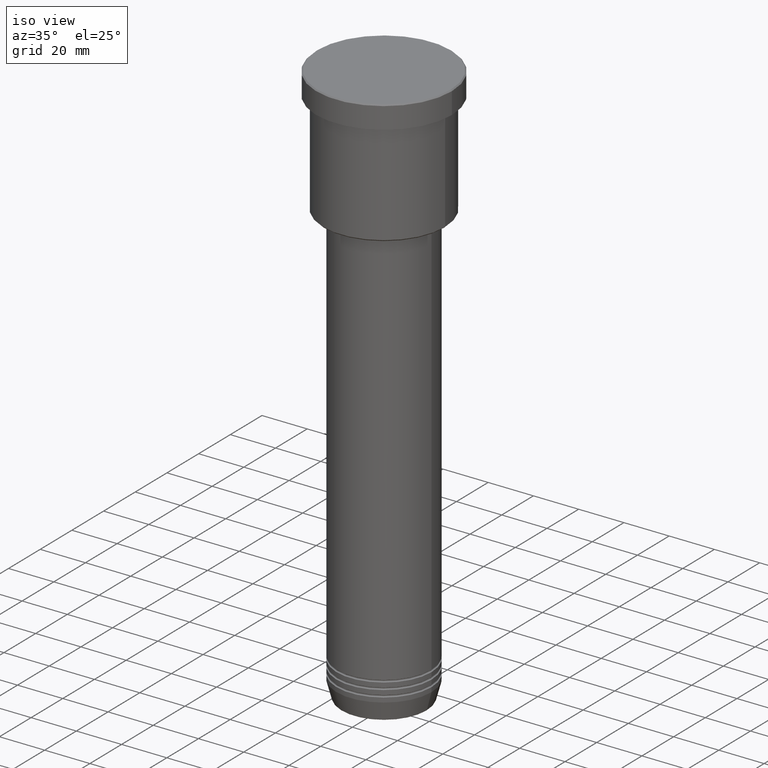
[diagram: clean part render]
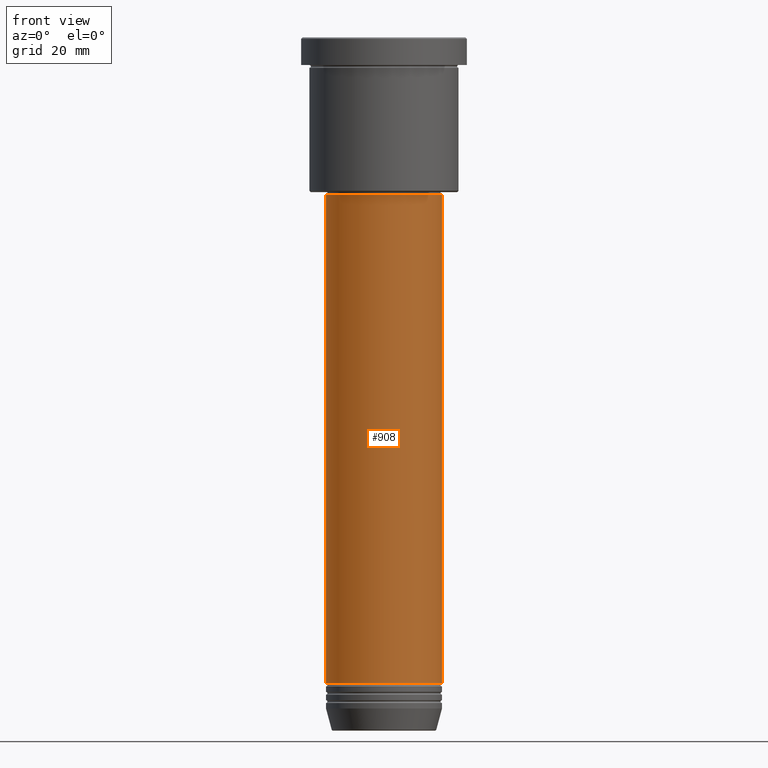
[diagram: tour spotlight — one face highlighted and labeled with its STEP entity id]
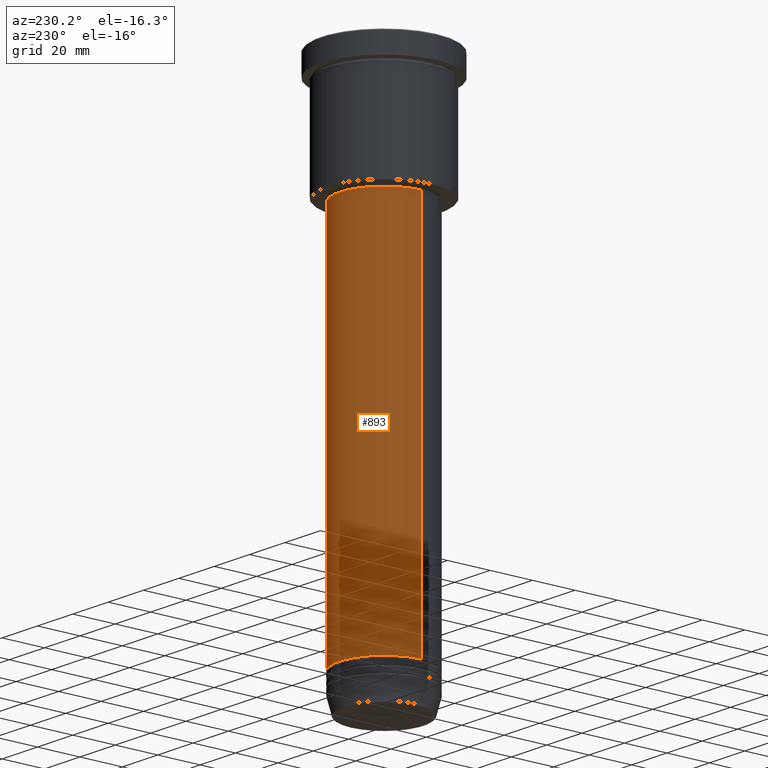
[diagram: tour spotlight — one face highlighted and labeled with its STEP entity id]
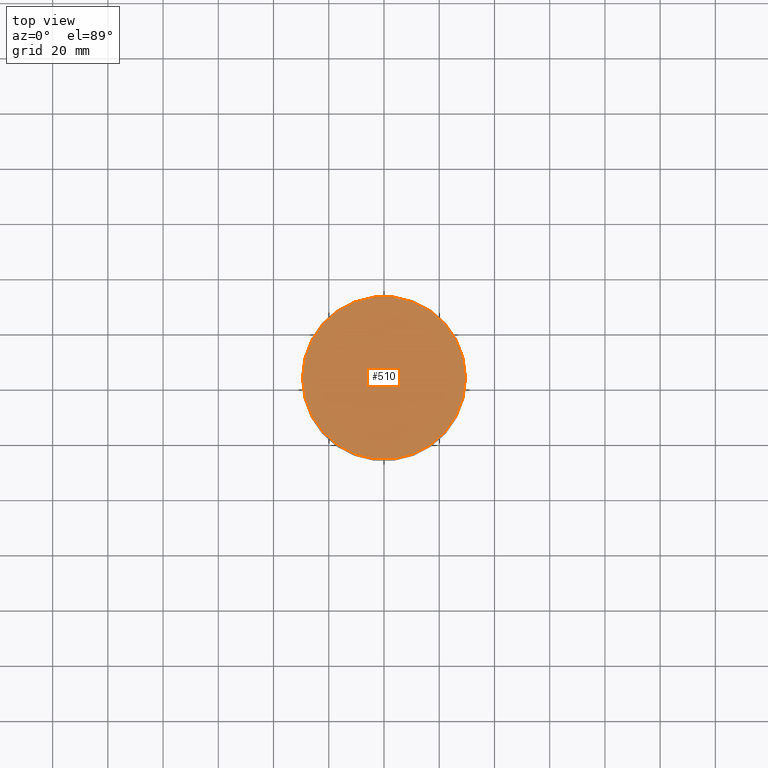
[diagram: tour spotlight — one face highlighted and labeled with its STEP entity id]
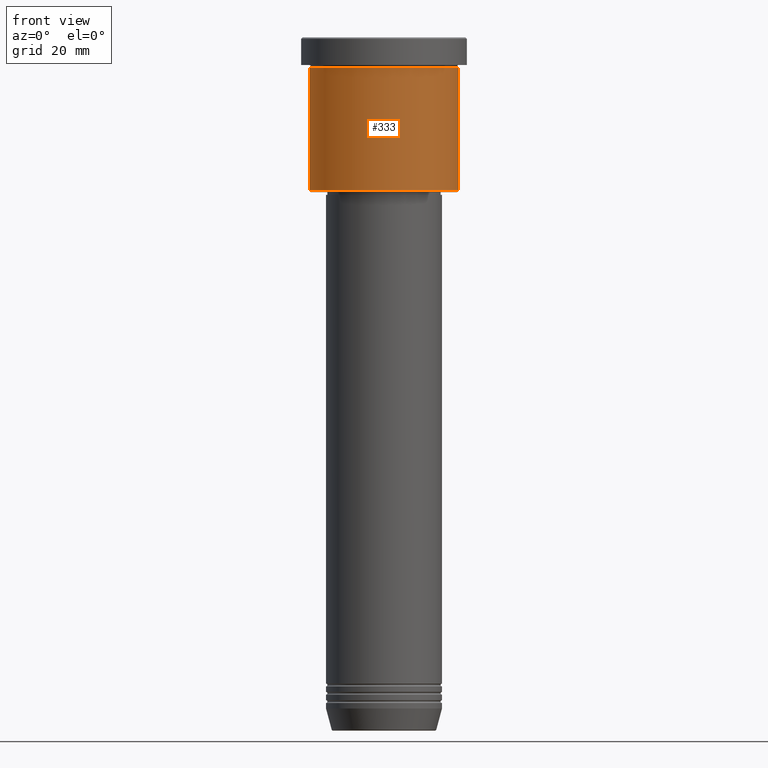
[diagram: tour spotlight — one face highlighted and labeled with its STEP entity id]
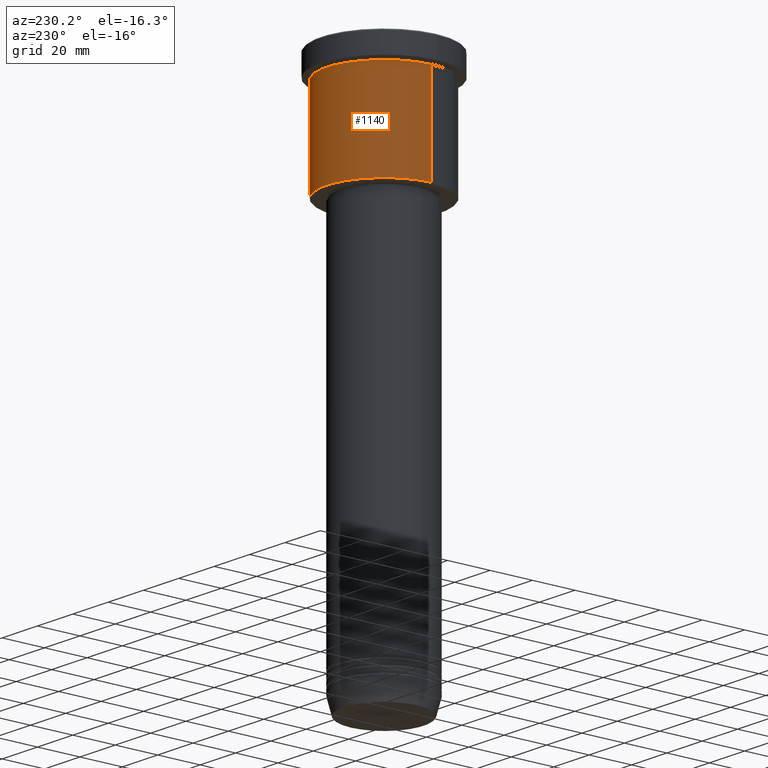
[diagram: tour spotlight — one face highlighted and labeled with its STEP entity id]
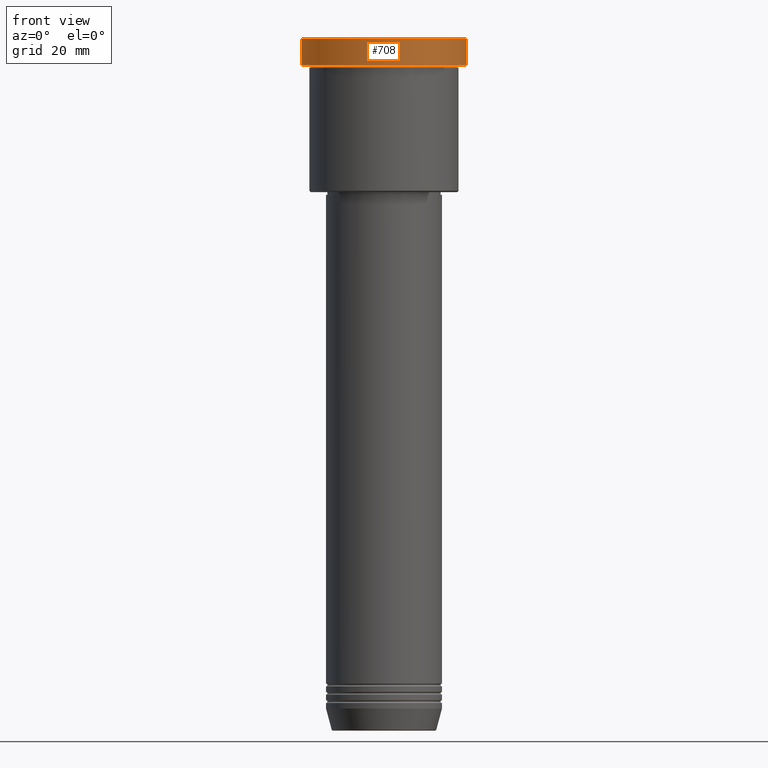
[diagram: tour spotlight — one face highlighted and labeled with its STEP entity id]
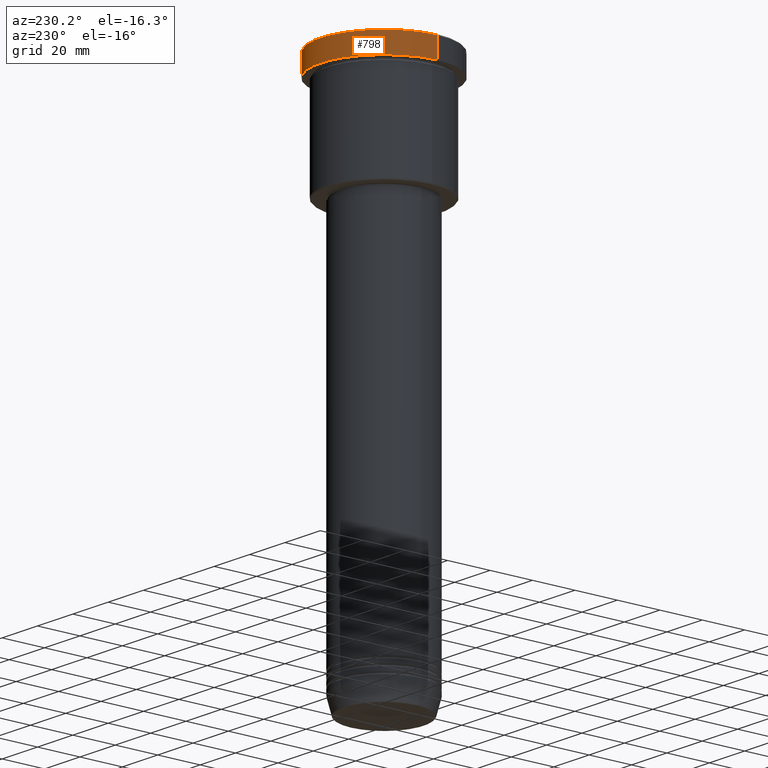
[diagram: tour spotlight — one face highlighted and labeled with its STEP entity id]
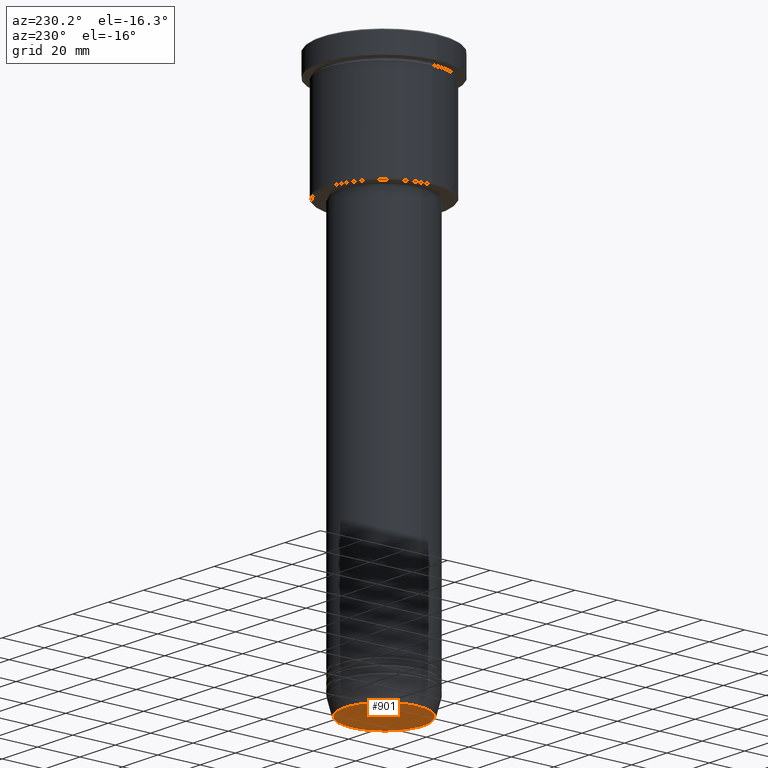
[diagram: tour spotlight — one face highlighted and labeled with its STEP entity id]
A machine part: a face-by-face anatomy tour. The part has 43 B-rep faces; the first image is the clean iso view, then the 8 largest visible faces are spotlighted one at a time (largest first), each with its STEP entity span.

Face 1 — front view, entity #908. In plain terms, the highlighted cylindrical surface (partial cylindrical patch) has radius 21 mm, axis along (-0, -0, 1).
Definition (entity closure, byte-faithful):
#22 = VECTOR ( 'NONE', #253, 1000.000000000000000 ) ;
#43 = EDGE_CURVE ( 'NONE', #993, #710, #267, .T. ) ;
#56 = DIRECTION ( 'NONE',  ( -0.000000000000000000, -0.000000000000000000, 1.000000000000000000 ) ) ;
#132 = DIRECTION ( 'NONE',  ( 1.000000000000000000, 0.000000000000000000, 0.000000000000000000 ) ) ;
#164 = CARTESIAN_POINT ( 'NONE',  ( -21.00000000000000000, 2.571758278209441661E-15, 0.000000000000000000 ) ) ;
#190 = DIRECTION ( 'NONE',  ( -0.000000000000000000, -0.000000000000000000, 1.000000000000000000 ) ) ;
#211 = VECTOR ( 'NONE', #190, 1000.000000000000000 ) ;
#213 = DIRECTION ( 'NONE',  ( -0.000000000000000000, -0.000000000000000000, 1.000000000000000000 ) ) ;
#232 = AXIS2_PLACEMENT_3D ( 'NONE', #590, #213, #132 ) ;
#253 = DIRECTION ( 'NONE',  ( -0.000000000000000000, -0.000000000000000000, 1.000000000000000000 ) ) ;
#254 = VERTEX_POINT ( 'NONE', #276 ) ;
#267 = LINE ( 'NONE', #1090, #211 ) ;
#276 = CARTESIAN_POINT ( 'NONE',  ( -21.00000000000000000, 2.571758278209441661E-15, -57.00000000000000000 ) ) ;
#306 = EDGE_CURVE ( 'NONE', #916, #254, #518, .T. ) ;
#322 = CARTESIAN_POINT ( 'NONE',  ( 21.00000000000000000, 0.000000000000000000, -234.0000000000000000 ) ) ;
#386 = EDGE_CURVE ( 'NONE', #916, #993, #1183, .T. ) ;
#430 = CARTESIAN_POINT ( 'NONE',  ( 0.000000000000000000, 0.000000000000000000, -57.00000000000000000 ) ) ;
#514 = ORIENTED_EDGE ( 'NONE', *, *, #582, .F. ) ;
#518 = LINE ( 'NONE', #164, #22 ) ;
#550 = ORIENTED_EDGE ( 'NONE', *, *, #386, .T. ) ;
#580 = CYLINDRICAL_SURFACE ( 'NONE', #232, 21.00000000000000000 ) ;
#582 = EDGE_CURVE ( 'NONE', #254, #710, #598, .T. ) ;
#590 = CARTESIAN_POINT ( 'NONE',  ( 0.000000000000000000, 0.000000000000000000, 0.000000000000000000 ) ) ;
#598 = CIRCLE ( 'NONE', #1127, 21.00000000000000000 ) ;
#601 = ORIENTED_EDGE ( 'NONE', *, *, #43, .T. ) ;
#680 = AXIS2_PLACEMENT_3D ( 'NONE', #1159, #891, #977 ) ;
#710 = VERTEX_POINT ( 'NONE', #814 ) ;
#757 = CARTESIAN_POINT ( 'NONE',  ( -21.00000000000000000, 2.571758278209441661E-15, -234.0000000000000000 ) ) ;
#801 = DIRECTION ( 'NONE',  ( 1.000000000000000000, 0.000000000000000000, 0.000000000000000000 ) ) ;
#814 = CARTESIAN_POINT ( 'NONE',  ( 21.00000000000000000, 0.000000000000000000, -57.00000000000000000 ) ) ;
#826 = EDGE_LOOP ( 'NONE', ( #934, #550, #601, #514 ) ) ;
#891 = DIRECTION ( 'NONE',  ( -0.000000000000000000, -0.000000000000000000, 1.000000000000000000 ) ) ;
#908 = ADVANCED_FACE ( 'NONE', ( #1016 ), #580, .T. ) ;
#916 = VERTEX_POINT ( 'NONE', #757 ) ;
#934 = ORIENTED_EDGE ( 'NONE', *, *, #306, .F. ) ;
#977 = DIRECTION ( 'NONE',  ( 1.000000000000000000, 0.000000000000000000, 0.000000000000000000 ) ) ;
#993 = VERTEX_POINT ( 'NONE', #322 ) ;
#1016 = FACE_OUTER_BOUND ( 'NONE', #826, .T. ) ;
#1090 = CARTESIAN_POINT ( 'NONE',  ( 21.00000000000000000, 0.000000000000000000, 0.000000000000000000 ) ) ;
#1127 = AXIS2_PLACEMENT_3D ( 'NONE', #430, #56, #801 ) ;
#1159 = CARTESIAN_POINT ( 'NONE',  ( 0.000000000000000000, 0.000000000000000000, -234.0000000000000000 ) ) ;
#1183 = CIRCLE ( 'NONE', #680, 21.00000000000000000 ) ;

Face 2 — auxiliary view, entity #893. In plain terms, the highlighted cylindrical surface (partial cylindrical patch) has radius 21 mm, axis along (-0, -0, 1).
Definition (entity closure, byte-faithful):
#16 = DIRECTION ( 'NONE',  ( 1.000000000000000000, 0.000000000000000000, 0.000000000000000000 ) ) ;
#22 = VECTOR ( 'NONE', #253, 1000.000000000000000 ) ;
#23 = CARTESIAN_POINT ( 'NONE',  ( 0.000000000000000000, 0.000000000000000000, 0.000000000000000000 ) ) ;
#32 = CYLINDRICAL_SURFACE ( 'NONE', #918, 21.00000000000000000 ) ;
#43 = EDGE_CURVE ( 'NONE', #993, #710, #267, .T. ) ;
#70 = ORIENTED_EDGE ( 'NONE', *, *, #306, .T. ) ;
#77 = CIRCLE ( 'NONE', #263, 21.00000000000000000 ) ;
#82 = DIRECTION ( 'NONE',  ( -0.000000000000000000, -0.000000000000000000, 1.000000000000000000 ) ) ;
#164 = CARTESIAN_POINT ( 'NONE',  ( -21.00000000000000000, 2.571758278209441661E-15, 0.000000000000000000 ) ) ;
#166 = CARTESIAN_POINT ( 'NONE',  ( 0.000000000000000000, 0.000000000000000000, -234.0000000000000000 ) ) ;
#190 = DIRECTION ( 'NONE',  ( -0.000000000000000000, -0.000000000000000000, 1.000000000000000000 ) ) ;
#202 = EDGE_LOOP ( 'NONE', ( #382, #70, #234, #919 ) ) ;
#211 = VECTOR ( 'NONE', #190, 1000.000000000000000 ) ;
#234 = ORIENTED_EDGE ( 'NONE', *, *, #942, .F. ) ;
#253 = DIRECTION ( 'NONE',  ( -0.000000000000000000, -0.000000000000000000, 1.000000000000000000 ) ) ;
#254 = VERTEX_POINT ( 'NONE', #276 ) ;
#263 = AXIS2_PLACEMENT_3D ( 'NONE', #166, #82, #442 ) ;
#267 = LINE ( 'NONE', #1090, #211 ) ;
#276 = CARTESIAN_POINT ( 'NONE',  ( -21.00000000000000000, 2.571758278209441661E-15, -57.00000000000000000 ) ) ;
#306 = EDGE_CURVE ( 'NONE', #916, #254, #518, .T. ) ;
#311 = DIRECTION ( 'NONE',  ( 1.000000000000000000, 0.000000000000000000, 0.000000000000000000 ) ) ;
#322 = CARTESIAN_POINT ( 'NONE',  ( 21.00000000000000000, 0.000000000000000000, -234.0000000000000000 ) ) ;
#331 = EDGE_CURVE ( 'NONE', #993, #916, #77, .T. ) ;
#382 = ORIENTED_EDGE ( 'NONE', *, *, #331, .T. ) ;
#442 = DIRECTION ( 'NONE',  ( 1.000000000000000000, 0.000000000000000000, 0.000000000000000000 ) ) ;
#477 = FACE_OUTER_BOUND ( 'NONE', #202, .T. ) ;
#518 = LINE ( 'NONE', #164, #22 ) ;
#568 = AXIS2_PLACEMENT_3D ( 'NONE', #1029, #943, #311 ) ;
#710 = VERTEX_POINT ( 'NONE', #814 ) ;
#757 = CARTESIAN_POINT ( 'NONE',  ( -21.00000000000000000, 2.571758278209441661E-15, -234.0000000000000000 ) ) ;
#814 = CARTESIAN_POINT ( 'NONE',  ( 21.00000000000000000, 0.000000000000000000, -57.00000000000000000 ) ) ;
#838 = DIRECTION ( 'NONE',  ( -0.000000000000000000, -0.000000000000000000, 1.000000000000000000 ) ) ;
#893 = ADVANCED_FACE ( 'NONE', ( #477 ), #32, .T. ) ;
#916 = VERTEX_POINT ( 'NONE', #757 ) ;
#918 = AXIS2_PLACEMENT_3D ( 'NONE', #23, #838, #16 ) ;
#919 = ORIENTED_EDGE ( 'NONE', *, *, #43, .F. ) ;
#942 = EDGE_CURVE ( 'NONE', #710, #254, #990, .T. ) ;
#943 = DIRECTION ( 'NONE',  ( -0.000000000000000000, -0.000000000000000000, 1.000000000000000000 ) ) ;
#990 = CIRCLE ( 'NONE', #568, 21.00000000000000000 ) ;
#993 = VERTEX_POINT ( 'NONE', #322 ) ;
#1029 = CARTESIAN_POINT ( 'NONE',  ( 0.000000000000000000, 0.000000000000000000, -57.00000000000000000 ) ) ;
#1090 = CARTESIAN_POINT ( 'NONE',  ( 21.00000000000000000, 0.000000000000000000, 0.000000000000000000 ) ) ;

Face 3 — top view, entity #510. In plain terms, the highlighted planar face has unit normal (0, -0, 1).
Definition (entity closure, byte-faithful):
#31 = EDGE_CURVE ( 'NONE', #327, #414, #728, .T. ) ;
#88 = CARTESIAN_POINT ( 'NONE',  ( 0.000000000000000000, 0.000000000000000000, 0.000000000000000000 ) ) ;
#214 = DIRECTION ( 'NONE',  ( 0.000000000000000000, -0.000000000000000000, 1.000000000000000000 ) ) ;
#231 = AXIS2_PLACEMENT_3D ( 'NONE', #941, #214, #478 ) ;
#245 = CARTESIAN_POINT ( 'NONE',  ( 0.000000000000000000, 0.000000000000000000, 0.000000000000000000 ) ) ;
#265 = EDGE_LOOP ( 'NONE', ( #959, #427 ) ) ;
#327 = VERTEX_POINT ( 'NONE', #1174 ) ;
#414 = VERTEX_POINT ( 'NONE', #676 ) ;
#415 = AXIS2_PLACEMENT_3D ( 'NONE', #88, #461, #437 ) ;
#427 = ORIENTED_EDGE ( 'NONE', *, *, #995, .T. ) ;
#437 = DIRECTION ( 'NONE',  ( 1.000000000000000000, 0.000000000000000000, 0.000000000000000000 ) ) ;
#461 = DIRECTION ( 'NONE',  ( -0.000000000000000000, -0.000000000000000000, 1.000000000000000000 ) ) ;
#478 = DIRECTION ( 'NONE',  ( 1.000000000000000000, 0.000000000000000000, 0.000000000000000000 ) ) ;
#510 = ADVANCED_FACE ( 'NONE', ( #839 ), #850, .T. ) ;
#616 = DIRECTION ( 'NONE',  ( 1.000000000000000000, 0.000000000000000000, 0.000000000000000000 ) ) ;
#620 = CIRCLE ( 'NONE', #1007, 29.50000000000000000 ) ;
#676 = CARTESIAN_POINT ( 'NONE',  ( 29.50000000000000000, 3.643324227463375391E-15, 0.000000000000000000 ) ) ;
#728 = CIRCLE ( 'NONE', #415, 29.50000000000000000 ) ;
#839 = FACE_OUTER_BOUND ( 'NONE', #265, .T. ) ;
#850 = PLANE ( 'NONE',  #231 ) ;
#941 = CARTESIAN_POINT ( 'NONE',  ( 0.000000000000000000, 0.000000000000000000, 0.000000000000000000 ) ) ;
#959 = ORIENTED_EDGE ( 'NONE', *, *, #31, .T. ) ;
#995 = EDGE_CURVE ( 'NONE', #414, #327, #620, .T. ) ;
#1007 = AXIS2_PLACEMENT_3D ( 'NONE', #245, #1053, #616 ) ;
#1053 = DIRECTION ( 'NONE',  ( -0.000000000000000000, -0.000000000000000000, 1.000000000000000000 ) ) ;
#1174 = CARTESIAN_POINT ( 'NONE',  ( -29.50000000000000000, 0.000000000000000000, 0.000000000000000000 ) ) ;

Face 4 — front view, entity #333. In plain terms, the highlighted cylindrical surface (partial cylindrical patch) has radius 27 mm, axis along (-0, -0, 1).
Definition (entity closure, byte-faithful):
#19 = EDGE_CURVE ( 'NONE', #611, #773, #219, .T. ) ;
#74 = CARTESIAN_POINT ( 'NONE',  ( 27.00000000000000355, 0.000000000000000000, -10.99999999999999289 ) ) ;
#97 = VECTOR ( 'NONE', #933, 1000.000000000000000 ) ;
#180 = CARTESIAN_POINT ( 'NONE',  ( -27.00000000000000355, 3.306546357697854128E-15, -10.99999999999999289 ) ) ;
#219 = LINE ( 'NONE', #946, #97 ) ;
#228 = DIRECTION ( 'NONE',  ( -0.000000000000000000, -0.000000000000000000, 1.000000000000000000 ) ) ;
#269 = FACE_OUTER_BOUND ( 'NONE', #928, .T. ) ;
#317 = DIRECTION ( 'NONE',  ( -0.000000000000000000, -0.000000000000000000, 1.000000000000000000 ) ) ;
#333 = ADVANCED_FACE ( 'NONE', ( #269 ), #588, .T. ) ;
#339 = VERTEX_POINT ( 'NONE', #608 ) ;
#355 = LINE ( 'NONE', #770, #1065 ) ;
#366 = EDGE_CURVE ( 'NONE', #339, #552, #355, .T. ) ;
#418 = CARTESIAN_POINT ( 'NONE',  ( 0.000000000000000000, 0.000000000000000000, -10.99999999999999289 ) ) ;
#426 = CARTESIAN_POINT ( 'NONE',  ( -27.00000000000000355, 3.306546357697854128E-15, -55.50000000000003553 ) ) ;
#552 = VERTEX_POINT ( 'NONE', #74 ) ;
#567 = AXIS2_PLACEMENT_3D ( 'NONE', #1039, #228, #597 ) ;
#588 = CYLINDRICAL_SURFACE ( 'NONE', #1121, 27.00000000000000355 ) ;
#589 = EDGE_CURVE ( 'NONE', #773, #552, #789, .T. ) ;
#597 = DIRECTION ( 'NONE',  ( -1.000000000000000000, 0.000000000000000000, 0.000000000000000000 ) ) ;
#608 = CARTESIAN_POINT ( 'NONE',  ( 27.00000000000000355, 0.000000000000000000, -55.50000000000003553 ) ) ;
#611 = VERTEX_POINT ( 'NONE', #426 ) ;
#649 = CIRCLE ( 'NONE', #567, 27.00000000000000355 ) ;
#683 = AXIS2_PLACEMENT_3D ( 'NONE', #418, #317, #790 ) ;
#690 = EDGE_CURVE ( 'NONE', #611, #339, #649, .T. ) ;
#765 = ORIENTED_EDGE ( 'NONE', *, *, #19, .F. ) ;
#770 = CARTESIAN_POINT ( 'NONE',  ( 27.00000000000000355, 0.000000000000000000, 0.000000000000000000 ) ) ;
#773 = VERTEX_POINT ( 'NONE', #180 ) ;
#789 = CIRCLE ( 'NONE', #683, 27.00000000000000355 ) ;
#790 = DIRECTION ( 'NONE',  ( 1.000000000000000000, 0.000000000000000000, 0.000000000000000000 ) ) ;
#792 = ORIENTED_EDGE ( 'NONE', *, *, #366, .T. ) ;
#922 = DIRECTION ( 'NONE',  ( -0.000000000000000000, -0.000000000000000000, 1.000000000000000000 ) ) ;
#928 = EDGE_LOOP ( 'NONE', ( #765, #1163, #792, #968 ) ) ;
#933 = DIRECTION ( 'NONE',  ( -0.000000000000000000, -0.000000000000000000, 1.000000000000000000 ) ) ;
#946 = CARTESIAN_POINT ( 'NONE',  ( -27.00000000000000355, 3.306546357697854128E-15, 0.000000000000000000 ) ) ;
#968 = ORIENTED_EDGE ( 'NONE', *, *, #589, .F. ) ;
#1039 = CARTESIAN_POINT ( 'NONE',  ( 0.000000000000000000, 0.000000000000000000, -55.50000000000003553 ) ) ;
#1050 = DIRECTION ( 'NONE',  ( 1.000000000000000000, 0.000000000000000000, 0.000000000000000000 ) ) ;
#1065 = VECTOR ( 'NONE', #1132, 1000.000000000000000 ) ;
#1121 = AXIS2_PLACEMENT_3D ( 'NONE', #1126, #922, #1050 ) ;
#1126 = CARTESIAN_POINT ( 'NONE',  ( 0.000000000000000000, 0.000000000000000000, 0.000000000000000000 ) ) ;
#1132 = DIRECTION ( 'NONE',  ( -0.000000000000000000, -0.000000000000000000, 1.000000000000000000 ) ) ;
#1163 = ORIENTED_EDGE ( 'NONE', *, *, #690, .T. ) ;

Face 5 — auxiliary view, entity #1140. In plain terms, the highlighted cylindrical surface (partial cylindrical patch) has radius 27 mm, axis along (-0, -0, 1).
Definition (entity closure, byte-faithful):
#19 = EDGE_CURVE ( 'NONE', #611, #773, #219, .T. ) ;
#74 = CARTESIAN_POINT ( 'NONE',  ( 27.00000000000000355, 0.000000000000000000, -10.99999999999999289 ) ) ;
#97 = VECTOR ( 'NONE', #933, 1000.000000000000000 ) ;
#159 = DIRECTION ( 'NONE',  ( -0.000000000000000000, -0.000000000000000000, 1.000000000000000000 ) ) ;
#180 = CARTESIAN_POINT ( 'NONE',  ( -27.00000000000000355, 3.306546357697854128E-15, -10.99999999999999289 ) ) ;
#219 = LINE ( 'NONE', #946, #97 ) ;
#249 = AXIS2_PLACEMENT_3D ( 'NONE', #712, #159, #701 ) ;
#270 = FACE_OUTER_BOUND ( 'NONE', #448, .T. ) ;
#275 = AXIS2_PLACEMENT_3D ( 'NONE', #733, #981, #546 ) ;
#301 = CARTESIAN_POINT ( 'NONE',  ( 0.000000000000000000, 0.000000000000000000, -10.99999999999999289 ) ) ;
#339 = VERTEX_POINT ( 'NONE', #608 ) ;
#353 = EDGE_CURVE ( 'NONE', #552, #773, #875, .T. ) ;
#355 = LINE ( 'NONE', #770, #1065 ) ;
#366 = EDGE_CURVE ( 'NONE', #339, #552, #355, .T. ) ;
#388 = CIRCLE ( 'NONE', #249, 27.00000000000000355 ) ;
#426 = CARTESIAN_POINT ( 'NONE',  ( -27.00000000000000355, 3.306546357697854128E-15, -55.50000000000003553 ) ) ;
#448 = EDGE_LOOP ( 'NONE', ( #799, #1106, #515, #1149 ) ) ;
#515 = ORIENTED_EDGE ( 'NONE', *, *, #353, .F. ) ;
#540 = AXIS2_PLACEMENT_3D ( 'NONE', #301, #894, #964 ) ;
#546 = DIRECTION ( 'NONE',  ( 1.000000000000000000, 0.000000000000000000, 0.000000000000000000 ) ) ;
#552 = VERTEX_POINT ( 'NONE', #74 ) ;
#608 = CARTESIAN_POINT ( 'NONE',  ( 27.00000000000000355, 0.000000000000000000, -55.50000000000003553 ) ) ;
#611 = VERTEX_POINT ( 'NONE', #426 ) ;
#639 = EDGE_CURVE ( 'NONE', #339, #611, #388, .T. ) ;
#701 = DIRECTION ( 'NONE',  ( -1.000000000000000000, 0.000000000000000000, 0.000000000000000000 ) ) ;
#712 = CARTESIAN_POINT ( 'NONE',  ( 0.000000000000000000, 0.000000000000000000, -55.50000000000003553 ) ) ;
#733 = CARTESIAN_POINT ( 'NONE',  ( 0.000000000000000000, 0.000000000000000000, 0.000000000000000000 ) ) ;
#770 = CARTESIAN_POINT ( 'NONE',  ( 27.00000000000000355, 0.000000000000000000, 0.000000000000000000 ) ) ;
#773 = VERTEX_POINT ( 'NONE', #180 ) ;
#799 = ORIENTED_EDGE ( 'NONE', *, *, #639, .T. ) ;
#875 = CIRCLE ( 'NONE', #540, 27.00000000000000355 ) ;
#894 = DIRECTION ( 'NONE',  ( -0.000000000000000000, -0.000000000000000000, 1.000000000000000000 ) ) ;
#933 = DIRECTION ( 'NONE',  ( -0.000000000000000000, -0.000000000000000000, 1.000000000000000000 ) ) ;
#946 = CARTESIAN_POINT ( 'NONE',  ( -27.00000000000000355, 3.306546357697854128E-15, 0.000000000000000000 ) ) ;
#964 = DIRECTION ( 'NONE',  ( 1.000000000000000000, 0.000000000000000000, 0.000000000000000000 ) ) ;
#981 = DIRECTION ( 'NONE',  ( -0.000000000000000000, -0.000000000000000000, 1.000000000000000000 ) ) ;
#991 = CYLINDRICAL_SURFACE ( 'NONE', #275, 27.00000000000000355 ) ;
#1065 = VECTOR ( 'NONE', #1132, 1000.000000000000000 ) ;
#1106 = ORIENTED_EDGE ( 'NONE', *, *, #19, .T. ) ;
#1132 = DIRECTION ( 'NONE',  ( -0.000000000000000000, -0.000000000000000000, 1.000000000000000000 ) ) ;
#1140 = ADVANCED_FACE ( 'NONE', ( #270 ), #991, .T. ) ;
#1149 = ORIENTED_EDGE ( 'NONE', *, *, #366, .F. ) ;

Face 6 — front view, entity #708. In plain terms, the highlighted cylindrical surface (partial cylindrical patch) has radius 30 mm, axis along (-0, -0, 1).
Definition (entity closure, byte-faithful):
#10 = VERTEX_POINT ( 'NONE', #20 ) ;
#20 = CARTESIAN_POINT ( 'NONE',  ( -30.00000000000000000, 3.673940397442059178E-15, -0.5000000000000073275 ) ) ;
#34 = CARTESIAN_POINT ( 'NONE',  ( -30.00000000000000000, 3.673940397442059178E-15, 0.000000000000000000 ) ) ;
#65 = VERTEX_POINT ( 'NONE', #557 ) ;
#89 = EDGE_CURVE ( 'NONE', #874, #65, #967, .T. ) ;
#111 = CARTESIAN_POINT ( 'NONE',  ( 30.00000000000000000, 0.000000000000000000, -0.5000000000000073275 ) ) ;
#137 = CARTESIAN_POINT ( 'NONE',  ( 0.000000000000000000, 0.000000000000000000, -0.5000000000000073275 ) ) ;
#241 = EDGE_CURVE ( 'NONE', #65, #879, #298, .T. ) ;
#282 = CARTESIAN_POINT ( 'NONE',  ( 30.00000000000000000, 0.000000000000000000, 0.000000000000000000 ) ) ;
#293 = EDGE_CURVE ( 'NONE', #874, #10, #373, .T. ) ;
#298 = LINE ( 'NONE', #282, #636 ) ;
#310 = ORIENTED_EDGE ( 'NONE', *, *, #89, .T. ) ;
#351 = FACE_OUTER_BOUND ( 'NONE', #635, .T. ) ;
#373 = LINE ( 'NONE', #34, #596 ) ;
#374 = DIRECTION ( 'NONE',  ( 1.000000000000000000, 0.000000000000000000, 0.000000000000000000 ) ) ;
#394 = DIRECTION ( 'NONE',  ( -0.000000000000000000, -0.000000000000000000, 1.000000000000000000 ) ) ;
#445 = DIRECTION ( 'NONE',  ( -0.000000000000000000, -0.000000000000000000, 1.000000000000000000 ) ) ;
#463 = DIRECTION ( 'NONE',  ( -0.000000000000000000, -0.000000000000000000, 1.000000000000000000 ) ) ;
#502 = DIRECTION ( 'NONE',  ( 0.000000000000000000, 0.000000000000000000, -1.000000000000000000 ) ) ;
#526 = AXIS2_PLACEMENT_3D ( 'NONE', #137, #502, #1135 ) ;
#557 = CARTESIAN_POINT ( 'NONE',  ( 30.00000000000000000, 0.000000000000000000, -9.999999999999992895 ) ) ;
#596 = VECTOR ( 'NONE', #394, 1000.000000000000000 ) ;
#618 = ORIENTED_EDGE ( 'NONE', *, *, #293, .F. ) ;
#635 = EDGE_LOOP ( 'NONE', ( #618, #310, #830, #660 ) ) ;
#636 = VECTOR ( 'NONE', #671, 1000.000000000000000 ) ;
#648 = AXIS2_PLACEMENT_3D ( 'NONE', #653, #445, #1080 ) ;
#653 = CARTESIAN_POINT ( 'NONE',  ( 0.000000000000000000, 0.000000000000000000, 0.000000000000000000 ) ) ;
#660 = ORIENTED_EDGE ( 'NONE', *, *, #679, .T. ) ;
#671 = DIRECTION ( 'NONE',  ( -0.000000000000000000, -0.000000000000000000, 1.000000000000000000 ) ) ;
#679 = EDGE_CURVE ( 'NONE', #879, #10, #989, .T. ) ;
#708 = ADVANCED_FACE ( 'NONE', ( #351 ), #910, .T. ) ;
#830 = ORIENTED_EDGE ( 'NONE', *, *, #241, .T. ) ;
#874 = VERTEX_POINT ( 'NONE', #1101 ) ;
#879 = VERTEX_POINT ( 'NONE', #111 ) ;
#897 = AXIS2_PLACEMENT_3D ( 'NONE', #911, #463, #374 ) ;
#910 = CYLINDRICAL_SURFACE ( 'NONE', #648, 30.00000000000000000 ) ;
#911 = CARTESIAN_POINT ( 'NONE',  ( 0.000000000000000000, 0.000000000000000000, -9.999999999999992895 ) ) ;
#967 = CIRCLE ( 'NONE', #897, 30.00000000000000000 ) ;
#989 = CIRCLE ( 'NONE', #526, 30.00000000000000000 ) ;
#1080 = DIRECTION ( 'NONE',  ( 1.000000000000000000, 0.000000000000000000, 0.000000000000000000 ) ) ;
#1101 = CARTESIAN_POINT ( 'NONE',  ( -30.00000000000000000, 3.673940397442059178E-15, -9.999999999999992895 ) ) ;
#1135 = DIRECTION ( 'NONE',  ( 1.000000000000000000, 0.000000000000000000, 0.000000000000000000 ) ) ;

Face 7 — auxiliary view, entity #798. In plain terms, the highlighted cylindrical surface (partial cylindrical patch) has radius 30 mm, axis along (-0, -0, 1).
Definition (entity closure, byte-faithful):
#10 = VERTEX_POINT ( 'NONE', #20 ) ;
#20 = CARTESIAN_POINT ( 'NONE',  ( -30.00000000000000000, 3.673940397442059178E-15, -0.5000000000000073275 ) ) ;
#34 = CARTESIAN_POINT ( 'NONE',  ( -30.00000000000000000, 3.673940397442059178E-15, 0.000000000000000000 ) ) ;
#65 = VERTEX_POINT ( 'NONE', #557 ) ;
#68 = CARTESIAN_POINT ( 'NONE',  ( 0.000000000000000000, 0.000000000000000000, -9.999999999999992895 ) ) ;
#78 = CARTESIAN_POINT ( 'NONE',  ( 0.000000000000000000, 0.000000000000000000, 0.000000000000000000 ) ) ;
#84 = CIRCLE ( 'NONE', #325, 30.00000000000000000 ) ;
#111 = CARTESIAN_POINT ( 'NONE',  ( 30.00000000000000000, 0.000000000000000000, -0.5000000000000073275 ) ) ;
#143 = DIRECTION ( 'NONE',  ( -0.000000000000000000, -0.000000000000000000, 1.000000000000000000 ) ) ;
#163 = FACE_OUTER_BOUND ( 'NONE', #691, .T. ) ;
#233 = ORIENTED_EDGE ( 'NONE', *, *, #606, .T. ) ;
#241 = EDGE_CURVE ( 'NONE', #65, #879, #298, .T. ) ;
#282 = CARTESIAN_POINT ( 'NONE',  ( 30.00000000000000000, 0.000000000000000000, 0.000000000000000000 ) ) ;
#293 = EDGE_CURVE ( 'NONE', #874, #10, #373, .T. ) ;
#298 = LINE ( 'NONE', #282, #636 ) ;
#314 = ORIENTED_EDGE ( 'NONE', *, *, #293, .T. ) ;
#325 = AXIS2_PLACEMENT_3D ( 'NONE', #68, #143, #511 ) ;
#361 = DIRECTION ( 'NONE',  ( 1.000000000000000000, 0.000000000000000000, 0.000000000000000000 ) ) ;
#373 = LINE ( 'NONE', #34, #596 ) ;
#394 = DIRECTION ( 'NONE',  ( -0.000000000000000000, -0.000000000000000000, 1.000000000000000000 ) ) ;
#434 = DIRECTION ( 'NONE',  ( -0.000000000000000000, -0.000000000000000000, 1.000000000000000000 ) ) ;
#511 = DIRECTION ( 'NONE',  ( 1.000000000000000000, 0.000000000000000000, 0.000000000000000000 ) ) ;
#531 = ORIENTED_EDGE ( 'NONE', *, *, #241, .F. ) ;
#539 = DIRECTION ( 'NONE',  ( 1.000000000000000000, 0.000000000000000000, 0.000000000000000000 ) ) ;
#553 = DIRECTION ( 'NONE',  ( 0.000000000000000000, 0.000000000000000000, -1.000000000000000000 ) ) ;
#557 = CARTESIAN_POINT ( 'NONE',  ( 30.00000000000000000, 0.000000000000000000, -9.999999999999992895 ) ) ;
#596 = VECTOR ( 'NONE', #394, 1000.000000000000000 ) ;
#606 = EDGE_CURVE ( 'NONE', #65, #874, #84, .T. ) ;
#621 = CIRCLE ( 'NONE', #940, 30.00000000000000000 ) ;
#632 = CARTESIAN_POINT ( 'NONE',  ( 0.000000000000000000, 0.000000000000000000, -0.5000000000000073275 ) ) ;
#636 = VECTOR ( 'NONE', #671, 1000.000000000000000 ) ;
#671 = DIRECTION ( 'NONE',  ( -0.000000000000000000, -0.000000000000000000, 1.000000000000000000 ) ) ;
#691 = EDGE_LOOP ( 'NONE', ( #233, #314, #1075, #531 ) ) ;
#798 = ADVANCED_FACE ( 'NONE', ( #163 ), #895, .T. ) ;
#874 = VERTEX_POINT ( 'NONE', #1101 ) ;
#879 = VERTEX_POINT ( 'NONE', #111 ) ;
#895 = CYLINDRICAL_SURFACE ( 'NONE', #1104, 30.00000000000000000 ) ;
#940 = AXIS2_PLACEMENT_3D ( 'NONE', #632, #553, #361 ) ;
#1075 = ORIENTED_EDGE ( 'NONE', *, *, #1137, .T. ) ;
#1101 = CARTESIAN_POINT ( 'NONE',  ( -30.00000000000000000, 3.673940397442059178E-15, -9.999999999999992895 ) ) ;
#1104 = AXIS2_PLACEMENT_3D ( 'NONE', #78, #434, #539 ) ;
#1137 = EDGE_CURVE ( 'NONE', #10, #879, #621, .T. ) ;

Face 8 — auxiliary view, entity #901. In plain terms, the highlighted planar face has unit normal (0, -0, 1).
Definition (entity closure, byte-faithful):
#308 = AXIS2_PLACEMENT_3D ( 'NONE', #930, #749, #494 ) ;
#332 = CARTESIAN_POINT ( 'NONE',  ( -18.47274296656154391, 2.291831503831604046E-15, -251.0000000000000000 ) ) ;
#383 = FACE_OUTER_BOUND ( 'NONE', #820, .T. ) ;
#403 = CIRCLE ( 'NONE', #544, 18.47274296656154391 ) ;
#421 = CIRCLE ( 'NONE', #1069, 18.47274296656154391 ) ;
#494 = DIRECTION ( 'NONE',  ( 1.000000000000000000, 0.000000000000000000, 0.000000000000000000 ) ) ;
#532 = DIRECTION ( 'NONE',  ( 1.000000000000000000, 0.000000000000000000, 0.000000000000000000 ) ) ;
#544 = AXIS2_PLACEMENT_3D ( 'NONE', #777, #617, #532 ) ;
#574 = PLANE ( 'NONE',  #308 ) ;
#617 = DIRECTION ( 'NONE',  ( 0.000000000000000000, 0.000000000000000000, -1.000000000000000000 ) ) ;
#628 = VERTEX_POINT ( 'NONE', #1162 ) ;
#644 = VERTEX_POINT ( 'NONE', #332 ) ;
#670 = DIRECTION ( 'NONE',  ( 1.000000000000000000, 0.000000000000000000, 0.000000000000000000 ) ) ;
#677 = EDGE_CURVE ( 'NONE', #628, #644, #403, .T. ) ;
#744 = DIRECTION ( 'NONE',  ( 0.000000000000000000, 0.000000000000000000, -1.000000000000000000 ) ) ;
#749 = DIRECTION ( 'NONE',  ( 0.000000000000000000, -0.000000000000000000, 1.000000000000000000 ) ) ;
#777 = CARTESIAN_POINT ( 'NONE',  ( 0.000000000000000000, 0.000000000000000000, -251.0000000000000000 ) ) ;
#820 = EDGE_LOOP ( 'NONE', ( #1076, #972 ) ) ;
#901 = ADVANCED_FACE ( 'NONE', ( #383 ), #574, .F. ) ;
#906 = EDGE_CURVE ( 'NONE', #644, #628, #421, .T. ) ;
#930 = CARTESIAN_POINT ( 'NONE',  ( 0.000000000000000000, 0.000000000000000000, -251.0000000000000000 ) ) ;
#972 = ORIENTED_EDGE ( 'NONE', *, *, #906, .T. ) ;
#1069 = AXIS2_PLACEMENT_3D ( 'NONE', #1109, #744, #670 ) ;
#1076 = ORIENTED_EDGE ( 'NONE', *, *, #677, .T. ) ;
#1109 = CARTESIAN_POINT ( 'NONE',  ( 0.000000000000000000, 0.000000000000000000, -251.0000000000000000 ) ) ;
#1162 = CARTESIAN_POINT ( 'NONE',  ( 18.47274296656154391, 0.000000000000000000, -251.0000000000000000 ) ) ;